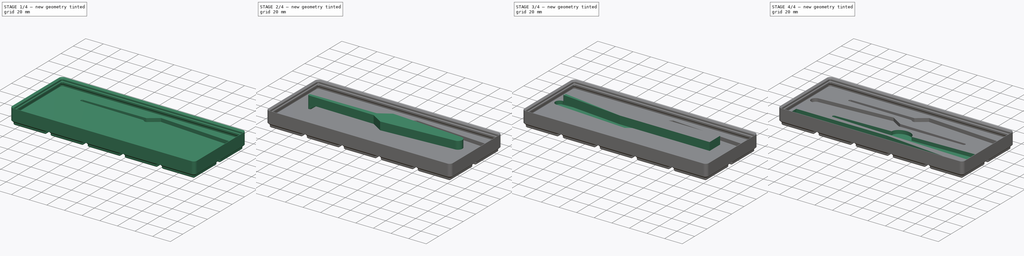
[diagram: build sequence overview — one tinted view per stage of 4, left to right]
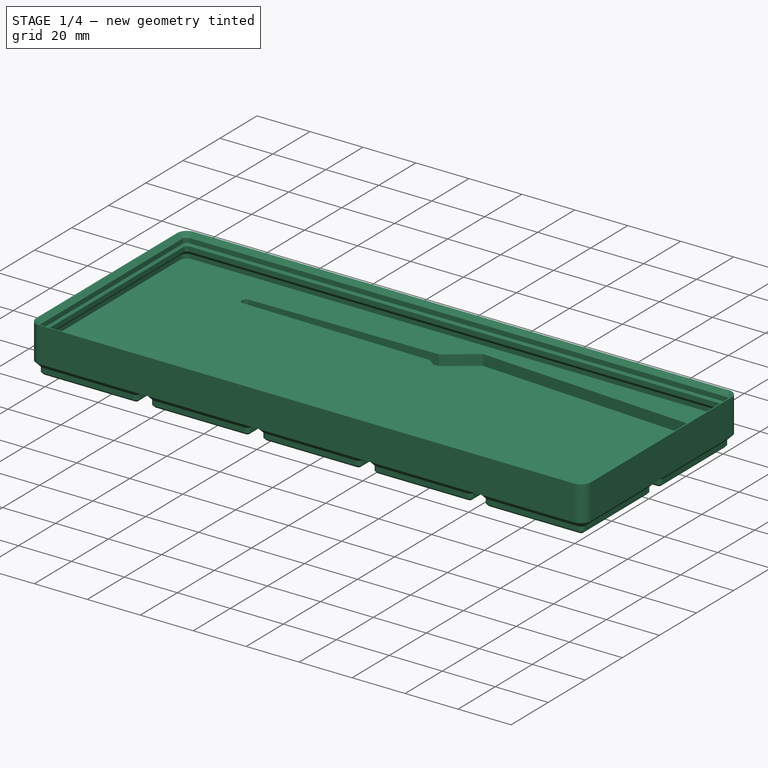
[diagram: stage 1 of 4 — iso view after this stage's code; geometry added in this stage tinted green]
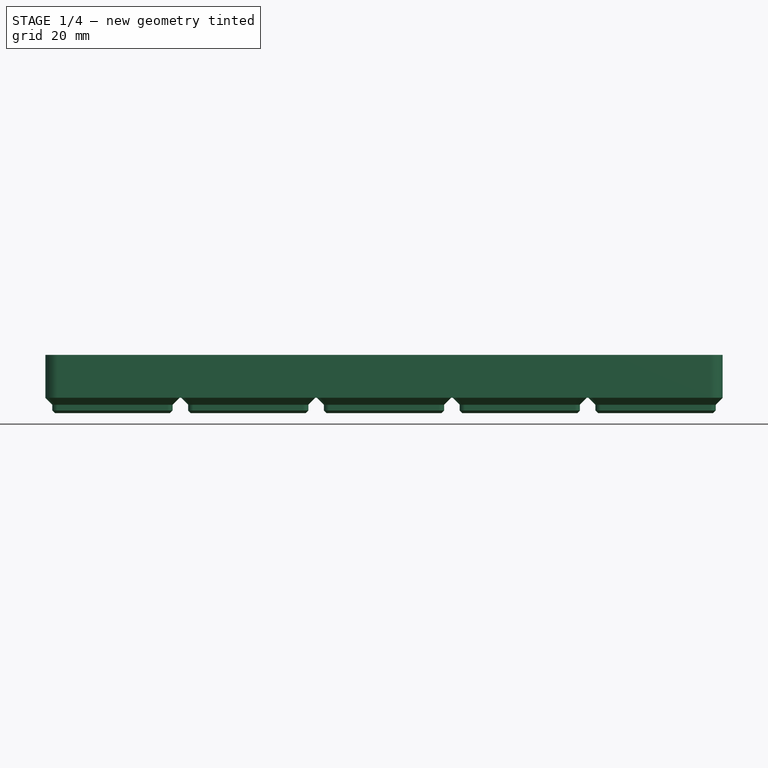
[diagram: stage 1 of 4 — front view after this stage's code; geometry added in this stage tinted green]
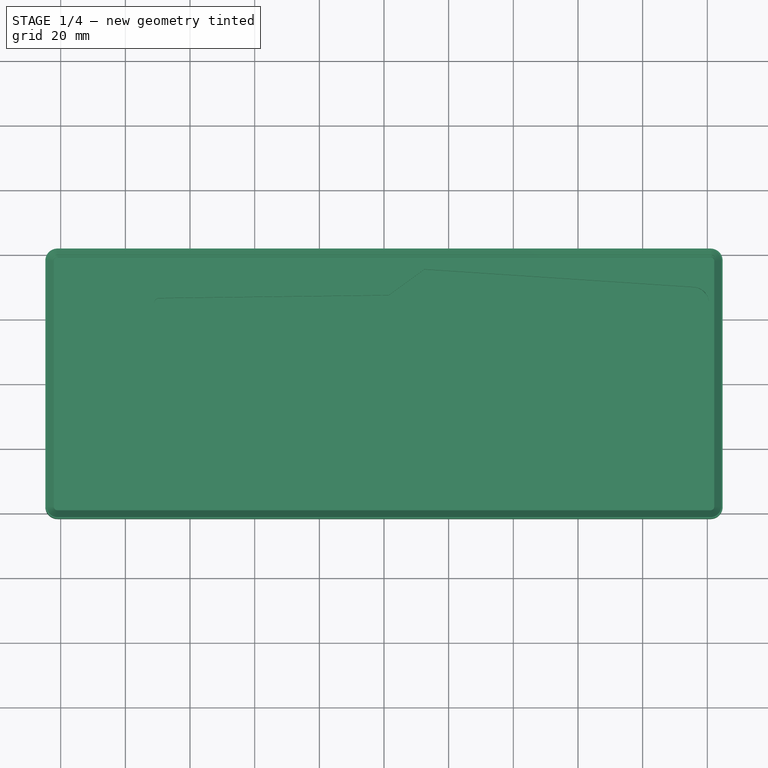
[diagram: stage 1 of 4 — top view after this stage's code; geometry added in this stage tinted green]
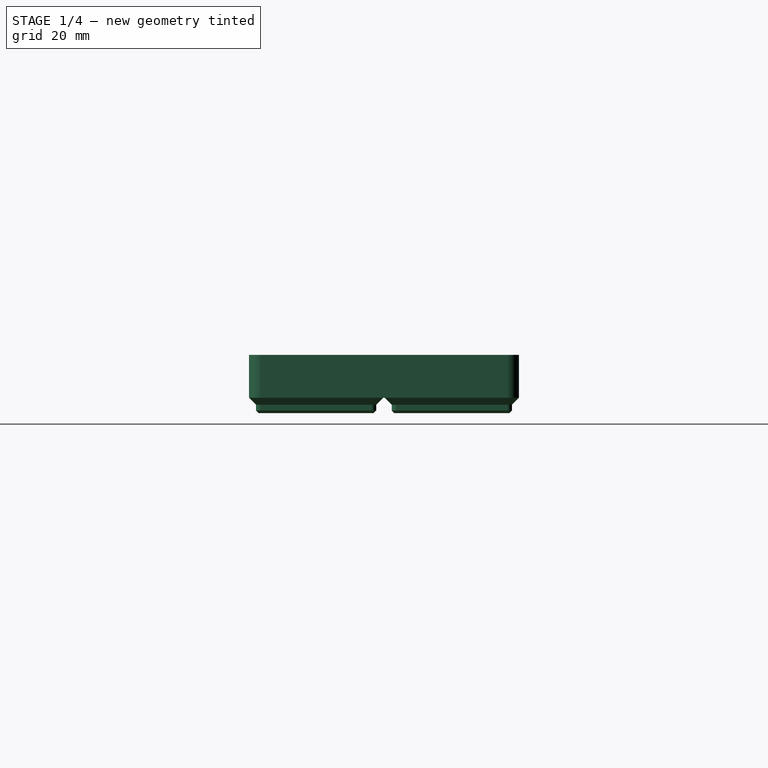
[diagram: stage 1 of 4 — right view after this stage's code; geometry added in this stage tinted green]
FCSTD DOCUMENT  (FreeCAD 1.0R39285 (Git))
Label: tweezer bin
License: All rights reserved
LicenseURL: https://en.wikipedia.org/wiki/All_rights_reserved
objects: Sketcher::SketchObject×6, PartDesign::Pad×5, PartDesign::Body×4, Part::Cut×4, Part::FeaturePython×1, PartDesign::AdditiveLoft×1
note: 39 computed .brp shape members not serialized (recipe doc carries the construction recipe); baked Part::Feature solids carry a one-line shape summary decoded from their .brp

FEATURE [Part::FeaturePython] BinBlank  # WARN: FeaturePython — macro-defined, semantics opaque (R4)
  BaseProfileBottomChamfer = 0.8
  BaseProfileHeight = 4.75
  BaseProfileTopChamfer = 2.15
  BaseProfileVerticalSection = 1.8
  Baseplate = false
  BinBottomRadius = 0.8
  BinOuterRadius = 3.75
  BinVerticalRadius = 1.6
  Clearance = 0.25
  CustomHeight = 42
  GenerationLocation = 1
  HeightUnitValue = 7
  HeightUnits = 2
  MagnetHoleDepth = 2.4
  MagnetHoleDiameter = 6.2
  MagnetHoleDistanceFromEdge = 8
  MagnetHoles = false
  MagnetHolesShape = 0
  NonStandardHeight = false
  RecessedTopDepth = 5
  ScrewHoleDepth = 6
  ScrewHoleDiameter = 3
  ScrewHoles = false
  SequentialBridgingLayerHeight = 0.2
  StackingLip = true
  StackingLipBottomChamfer = 0.7
  StackingLipTopChamfer = 1.5
  StackingLipTopLedge = 0.4
  StackingLipVerticalSection = 1.8
  TotalHeight = 14
  WallThickness = 1
  version = 0.11.9
  xGridSize = 42
  xGridUnits = 5
  xLocationOffset = 105
  xTotalWidth = 209.5
  yGridSize = 42
  yGridUnits = 2
  yLocationOffset = 42
  yTotalWidth = 83.5
  expr: BaseProfileHeight = BaseProfileBottomChamfer + BaseProfileVerticalSection + BaseProfileTopChamfer
  expr: TotalHeight = NonStandardHeight == 1 ? CustomHeight : HeightUnits * HeightUnitValue
  expr: xTotalWidth = xGridUnits * xGridSize - (Baseplate == 1 ? 0 mm : 2 * Clearance)
  expr: yTotalWidth = yGridUnits * yGridSize - (Baseplate == 1 ? 0 mm : 2 * Clearance)
FEATURE [Sketcher::SketchObject] Sketch
  ArcFitTolerance = 1e-06
  AttachmentSupport = -> [XY_Plane]
  FullyConstrained = true
  MakeInternals = false
  MapMode = 5
  sketch-geometry (8):
    g0: LineSegment StartX=-82.5203 StartY=-1.6 StartZ=0 EndX=-11.5203 EndY=-2.5 EndZ=0
    g1: LineSegment StartX=-11.5203 StartY=-2.5 StartZ=0 EndX=-0.5 EndY=-10.5061 EndZ=0
    g2: LineSegment StartX=-0.5 StartY=-10.5061 StartZ=0 EndX=82.8304 EndY=-5 EndZ=0
    g3: ArcOfCircle CenterX=82.5 CenterY=3e-16 CenterZ=0 NormalX=0 NormalY=0 NormalZ=1 AngleXU=0 Radius=5.0109 StartAngle=4.77837 EndAngle=7.788
    g4: LineSegment StartX=82.8304 StartY=5 StartZ=0 EndX=-0.5 EndY=10.5061 EndZ=0
    g5: LineSegment StartX=-0.5 StartY=10.5061 StartZ=0 EndX=-11.5203 EndY=2.5 EndZ=0
    g6: LineSegment StartX=-11.5203 StartY=2.5 StartZ=0 EndX=-82.5203 EndY=1.6 EndZ=0
    g7: ArcOfCircle CenterX=-82.5 CenterY=-1e-16 CenterZ=0 NormalX=0 NormalY=0 NormalZ=1 AngleXU=0 Radius=1.60013 StartAngle=1.58347 EndAngle=4.69971
  constraints (19):
    c: Coincident(g0,g1)
    c: Coincident(g1,g2)
    c: Tangent(g2,g3) = -1.5708
    c: Tangent(g3,g4) = -1.5708
    c: Coincident(g4,g5)
    c: Coincident(g5,g6)
    c: Tangent(g6,g7) = -1.5708
    c: Coincident(g7,g0)
    c: DistanceY(g0,g6) = 3.2
    c: DistanceY(g2,g3) = 10
    c: DistanceX(g7,g3) = 165
    c: DistanceX(g4,g3) = 83
    c: DistanceX(g0,g0) = 71
    c: DistanceY(g0,g5) = 5
    c: DistanceX(g-1,g3) = 82.5
    c: Symmetric(g2,g3,g-1)
    c: Symmetric(g4,g1,g-1)
    c: Symmetric(g5,g0,g-1)
    c: Symmetric(g0,g6,g-1)
FEATURE [PartDesign::Pad] Pad
  Direction = (0,0,1)
  Length = 9
  Length2 = 10
  Profile = -> Sketch
  ReferenceAxis = -> Sketch [N_Axis]
  Refine = true
  Suppressed = false
  Type = 0
FEATURE [PartDesign::Body] Body003  label="Clip Tweezer"
  AllowCompound = false
  Group = -> [Sketch005,Pad004]
  Origin = -> Origin003
  Placement = pos=(19,-12,-9) rot=(0,0,1;0rad)
  Tip = -> Pad004
FEATURE [Part::Cut] Cut
  Base = -> BinBlank
  Refine = true
  Tool = -> Body
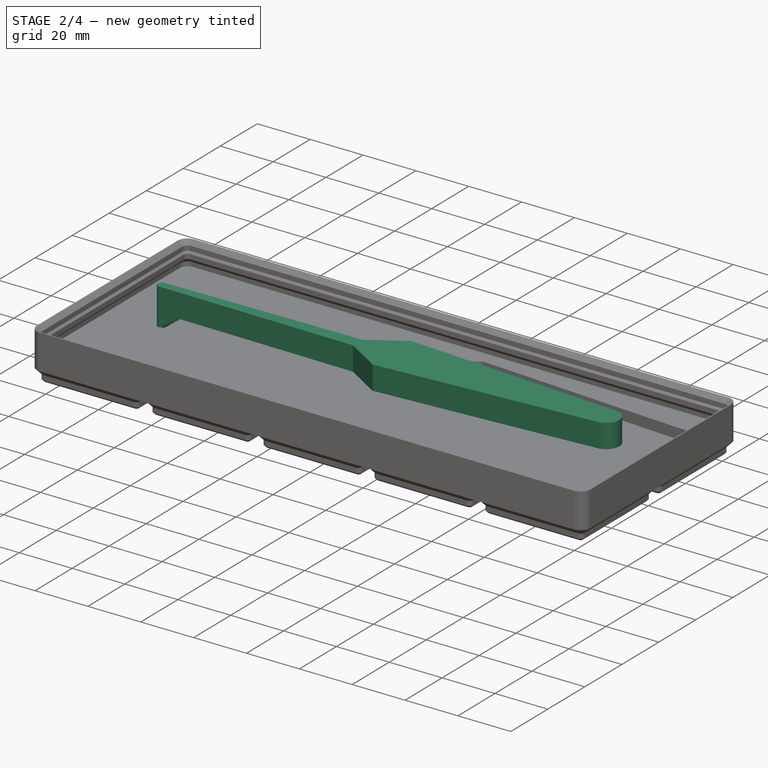
[diagram: stage 2 of 4 — iso view after this stage's code; geometry added in this stage tinted green]
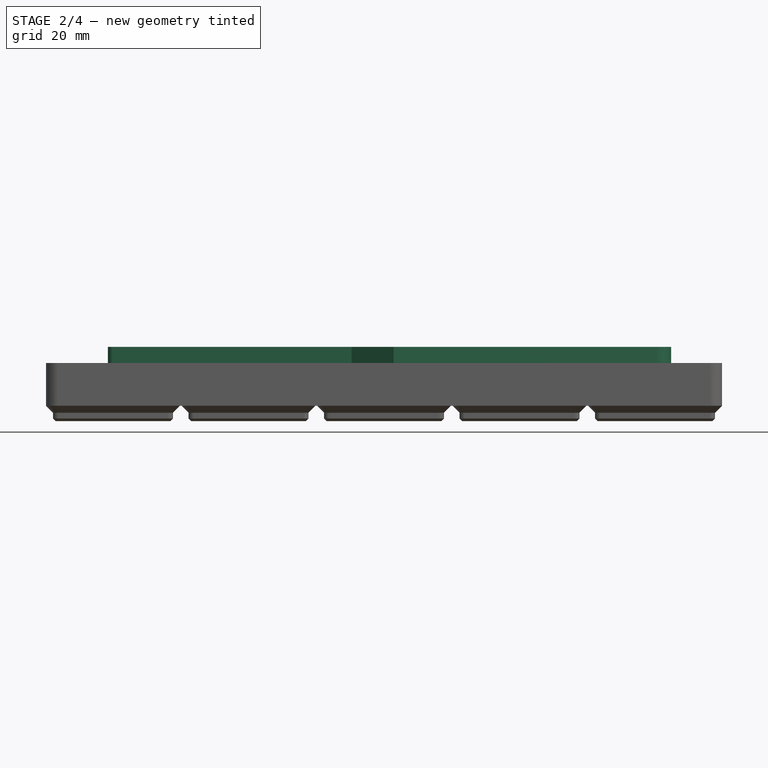
[diagram: stage 2 of 4 — front view after this stage's code; geometry added in this stage tinted green]
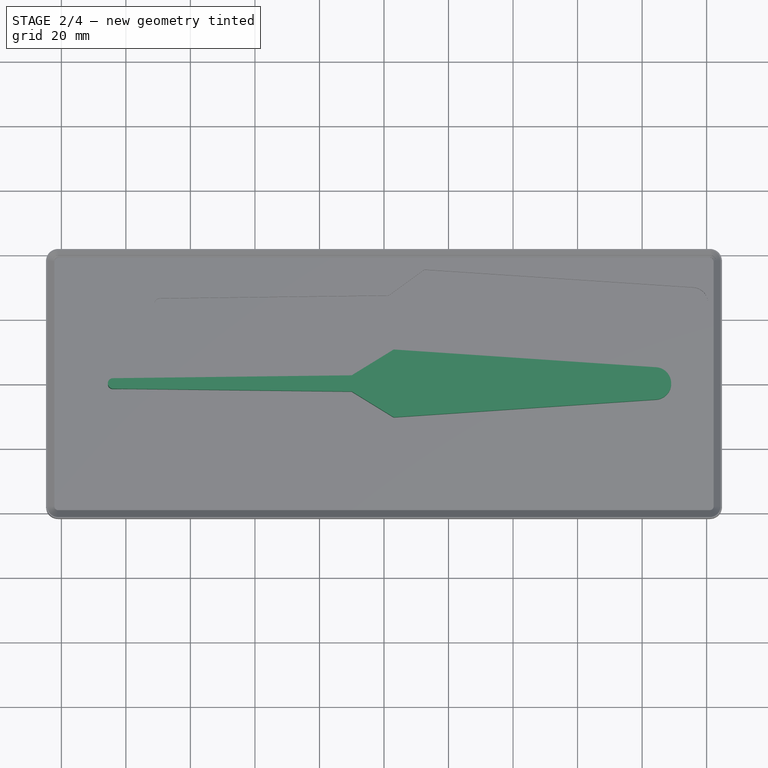
[diagram: stage 2 of 4 — top view after this stage's code; geometry added in this stage tinted green]
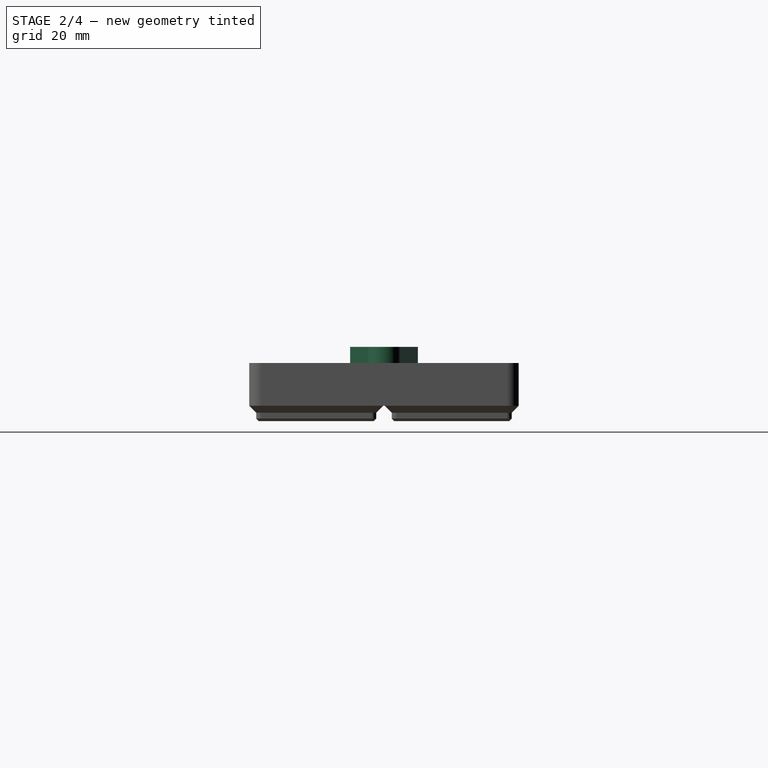
[diagram: stage 2 of 4 — right view after this stage's code; geometry added in this stage tinted green]
FEATURE [PartDesign::Body] Body  label="NC Tweezer Straight"
  AllowCompound = false
  Group = -> [Sketch,Pad]
  Origin = -> Origin
  Placement = pos=(13,25,-9) rot=(0,0,1;0rad)
  Tip = -> Pad
FEATURE [Sketcher::SketchObject] Sketch001
  ArcFitTolerance = 1e-06
  AttachmentSupport = -> [XY_Plane001]
  FullyConstrained = true
  MakeInternals = false
  MapMode = 5
  sketch-geometry (8):
    g0: LineSegment StartX=-84.0195 StartY=-1.6 StartZ=0 EndX=-10.0195 EndY=-2.5 EndZ=0
    g1: LineSegment StartX=-10.0195 StartY=-2.5 StartZ=0 EndX=3 EndY=-10.5 EndZ=0
    g2: LineSegment StartX=3 StartY=-10.5 StartZ=0 EndX=84.3381 EndY=-5 EndZ=0
    g3: ArcOfCircle CenterX=84 CenterY=0 CenterZ=0 NormalX=0 NormalY=0 NormalZ=1 AngleXU=0 Radius=5.01142 StartAngle=4.77991 EndAngle=7.78647
    g4: LineSegment StartX=84.3381 StartY=5 StartZ=0 EndX=3 EndY=10.5 EndZ=0
    g5: LineSegment StartX=3 StartY=10.5 StartZ=0 EndX=-10.0195 EndY=2.5 EndZ=0
    g6: LineSegment StartX=-10.0195 StartY=2.5 StartZ=0 EndX=-84.0195 EndY=1.6 EndZ=0
    g7: ArcOfCircle CenterX=-84 CenterY=1e-16 CenterZ=0 NormalX=0 NormalY=0 NormalZ=1 AngleXU=0 Radius=1.60012 StartAngle=1.58296 EndAngle=4.70023
  constraints (21):
    c: Coincident(g0,g1)
    c: Coincident(g1,g2)
    c: Tangent(g2,g3) = -1.5708
    c: Coincident(g4,g5)
    c: Coincident(g5,g6)
    c: Tangent(g6,g7) = -1.5708
    c: Coincident(g7,g0)
    c: DistanceY(g0,g6) = 3.2
    c: DistanceY(g2,g3) = 10
    c: DistanceX(g7,g3) = 168
    c: DistanceX(g4,g3) = 81
    c: DistanceX(g0,g0) = 74
    c: DistanceY(g0,g5) = 5
    c: Symmetric(g3,g2,g-1)
    c: DistanceY(g1,g4) = 21
    c: Symmetric(g5,g0,g-1)
    c: Symmetric(g6,g0,g-1)
    c: DistanceX(g-1,g3) = 84
    c: Symmetric(g4,g1,g-1)
    c: PointOnObject(g4,g3)
    c: Tangent(g3,g4,g4) = -1.5708
FEATURE [PartDesign::Pad] Pad001
  Direction = (0,0,1)
  Length = 9
  Length2 = 10
  Profile = -> Sketch001
  ReferenceAxis = -> Sketch001 [N_Axis]
  Refine = true
  Suppressed = false
  Type = 0
FEATURE [Sketcher::SketchObject] Sketch002
  ArcFitTolerance = 1e-06
  AttachmentSupport = -> [Pad001]
  ExternalGeometry = -> [Pad001]
  FullyConstrained = true
  MakeInternals = false
  MapMode = 5
  Placement = pos=(0,0,0) rot=(1,0,0;3.14159rad)
  sketch-geometry (1):
    g0: Circle CenterX=-84 CenterY=-1e-16 CenterZ=0 NormalX=0 NormalY=0 NormalZ=1 AngleXU=0 Radius=1.60012
  constraints (2):
    c: Coincident(g0,g-3)
    c: PointOnObject(g-3,g0)
FEATURE [PartDesign::Pad] Pad002
  BaseFeature = -> Pad001
  Direction = (0,0,-1)
  Length = 5
  Length2 = 10
  Profile = -> Sketch002
  ReferenceAxis = -> Sketch002 [N_Axis]
  Refine = true
  Suppressed = false
  Type = 0
FEATURE [Sketcher::SketchObject] Sketch003
  ArcFitTolerance = 1e-06
  AttachmentSupport = -> [Pad002]
  ExternalGeometry = -> [Pad002]
  FullyConstrained = true
  MakeInternals = false
  MapMode = 5
  Placement = pos=(0,0,0) rot=(1,0,0;3.14159rad)
  sketch-geometry (4):
    g0: LineSegment StartX=-84.0195 StartY=-1.6 StartZ=0 EndX=-76 EndY=-1.69753 EndZ=0
    g1: LineSegment StartX=-76 StartY=-1.69753 StartZ=0 EndX=-76 EndY=1.69753 EndZ=0
    g2: LineSegment StartX=-76 StartY=1.69753 StartZ=0 EndX=-84.0195 EndY=1.6 EndZ=0
    g3: ArcOfCircle CenterX=-84 CenterY=0 CenterZ=0 NormalX=0 NormalY=0 NormalZ=1 AngleXU=0 Radius=1.60012 StartAngle=1.58296 EndAngle=4.70023
  constraints (10):
    c: Coincident(g0,g1)
    c: Vertical(g1)
    c: Coincident(g1,g2)
    c: Tangent(g2,g3) = -1.5708
    c: Coincident(g3,g0)
    c: DistanceX(g3,g1) = 8
    c: Coincident(g2,g-4)
    c: Coincident(g0,g-5)
    c: PointOnObject(g1,g-4)
    c: PointOnObject(g0,g-5)
FEATURE [PartDesign::AdditiveLoft] AdditiveLoft
  BaseFeature = -> Pad002
  Closed = false
  Profile = -> Sketch003
  Refine = true
  Ruled = false
  Sections = -> [Pad002]
  Suppressed = false
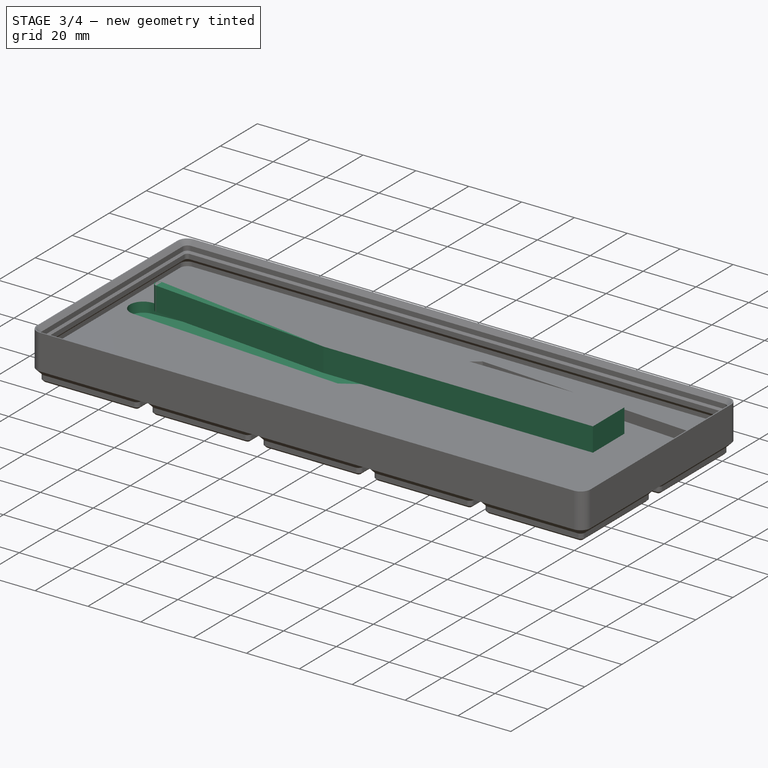
[diagram: stage 3 of 4 — iso view after this stage's code; geometry added in this stage tinted green]
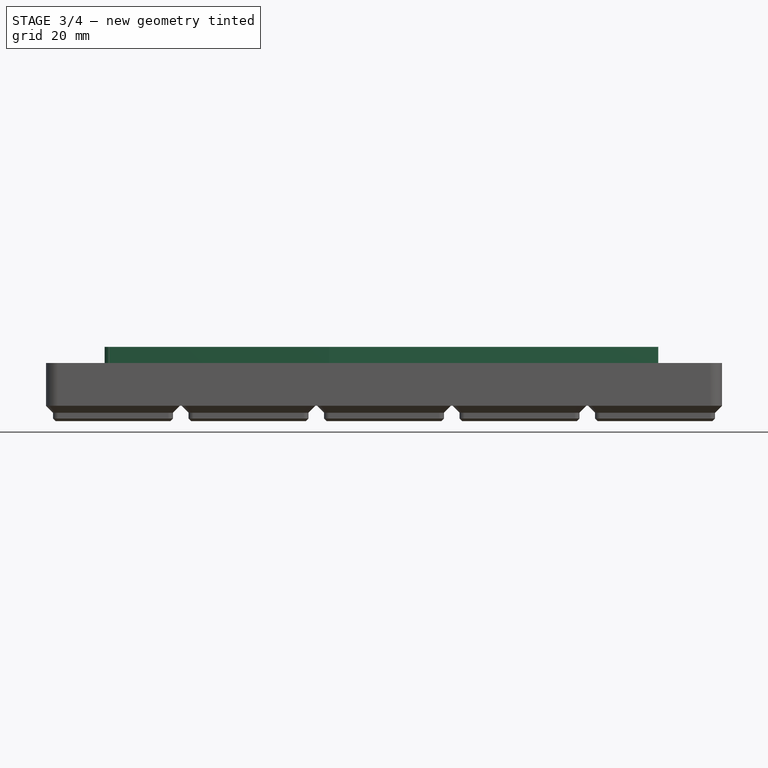
[diagram: stage 3 of 4 — front view after this stage's code; geometry added in this stage tinted green]
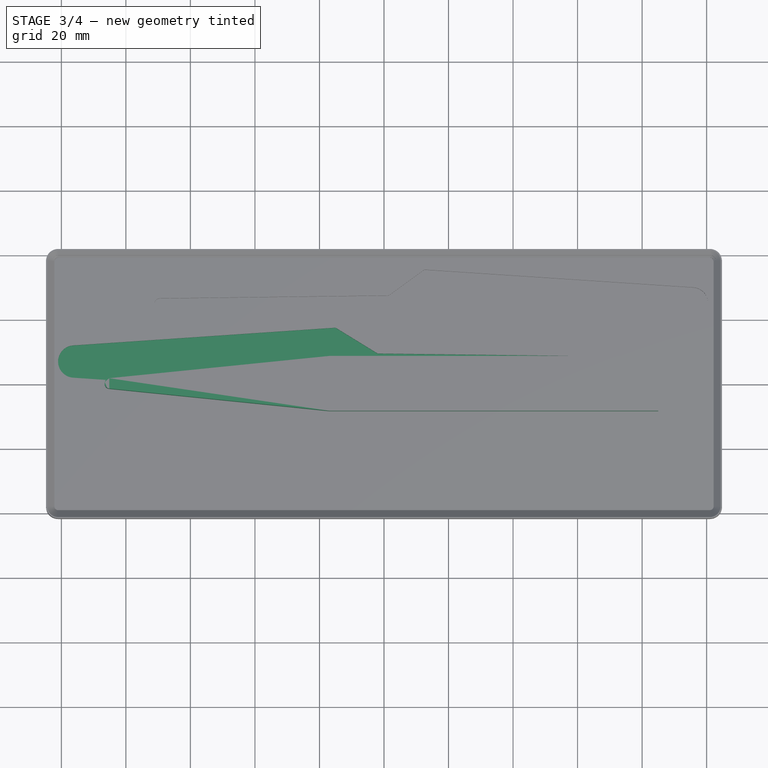
[diagram: stage 3 of 4 — top view after this stage's code; geometry added in this stage tinted green]
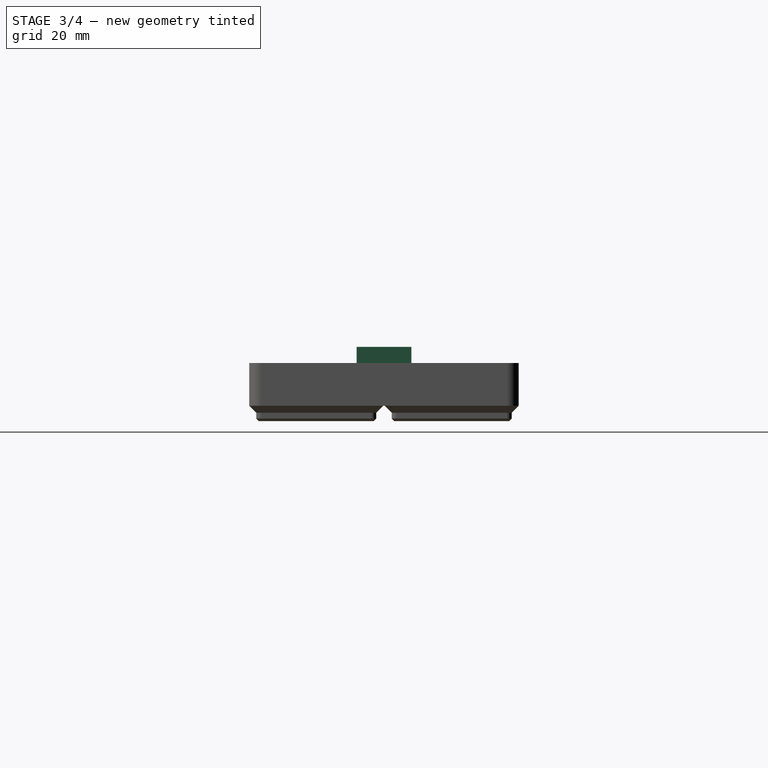
[diagram: stage 3 of 4 — right view after this stage's code; geometry added in this stage tinted green]
FEATURE [PartDesign::Body] Body001  label="NC Tweezer Angled"
  AllowCompound = false
  Group = -> [Pad001,Sketch001,Sketch002,Pad002,Sketch003,AdditiveLoft]
  Origin = -> Origin001
  Placement = pos=(-12,7,-8.8) rot=(0,0,1;3.14159rad)
  Tip = -> AdditiveLoft
FEATURE [Sketcher::SketchObject] Sketch004
  ArcFitTolerance = 1e-06
  AttachmentSupport = -> [XY_Plane002]
  FullyConstrained = true
  MakeInternals = false
  MapMode = 5
  sketch-geometry (6):
    g0: LineSegment StartX=-85.162 StartY=-1.6 StartZ=0 EndX=-17 EndY=-8.5 EndZ=0
    g1: LineSegment StartX=-17 StartY=-8.5 StartZ=0 EndX=85 EndY=-8.5 EndZ=0
    g2: LineSegment StartX=85 StartY=-8.5 StartZ=0 EndX=85 EndY=8.5 EndZ=0
    g3: LineSegment StartX=85 StartY=8.5 StartZ=0 EndX=-17 EndY=8.5 EndZ=0
    g4: LineSegment StartX=-17 StartY=8.5 StartZ=0 EndX=-85.162 EndY=1.6 EndZ=0
    g5: ArcOfCircle CenterX=-85 CenterY=0 CenterZ=0 NormalX=0 NormalY=0 NormalZ=1 AngleXU=0 Radius=1.60818 StartAngle=1.67168 EndAngle=4.6115
  constraints (15):
    c: Coincident(g0,g1)
    c: Horizontal(g1)
    c: Coincident(g1,g2)
    c: Coincident(g2,g3)
    c: Coincident(g3,g4)
    c: Tangent(g4,g5) = -1.5708
    c: Coincident(g5,g0)
    c: DistanceY(g0,g3) = 17
    c: Symmetric(g3,g0,g-1)
    c: Symmetric(g2,g1,g-1)
    c: Symmetric(g4,g0,g-1)
    c: DistanceY(g0,g4) = 3.2
    c: DistanceX(g5,g2) = 170
    c: DistanceX(g3,g2) = 102
    c: DistanceX(g-1,g1) = 85
FEATURE [PartDesign::Pad] Pad003
  Direction = (0,0,1)
  Length = 9
  Length2 = 10
  Profile = -> Sketch004
  ReferenceAxis = -> Sketch004 [N_Axis]
  Refine = true
  Suppressed = false
  Type = 0
FEATURE [Part::Cut] Cut001
  Base = -> Cut
  Refine = true
  Tool = -> Body001
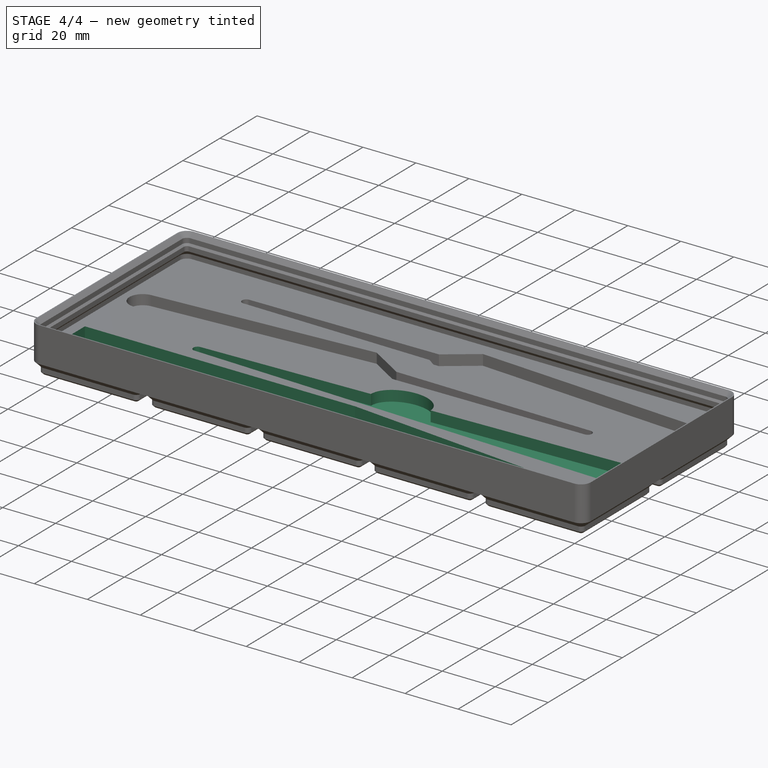
[diagram: stage 4 of 4 — iso view after this stage's code; geometry added in this stage tinted green]
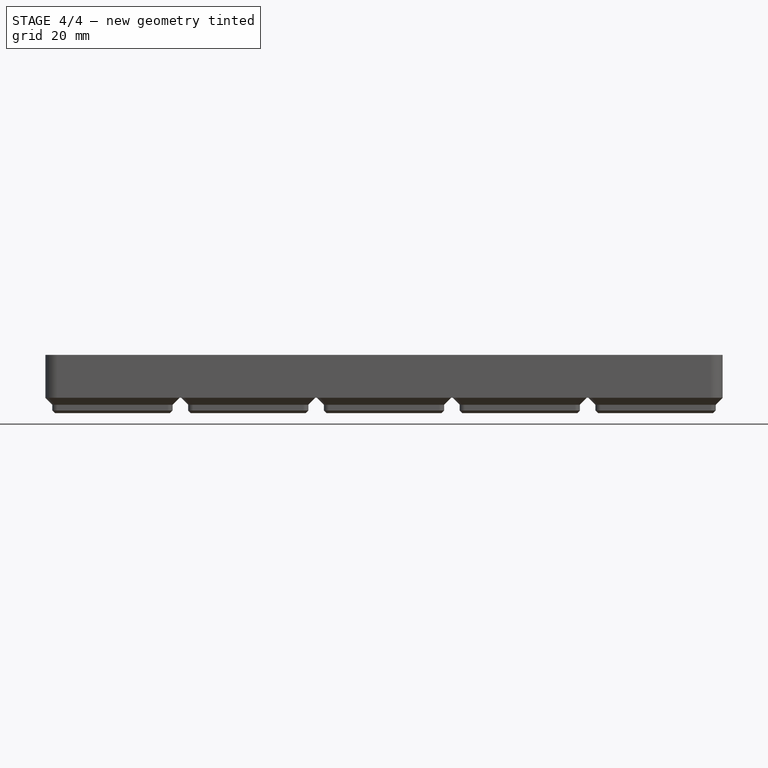
[diagram: stage 4 of 4 — front view after this stage's code; geometry added in this stage tinted green]
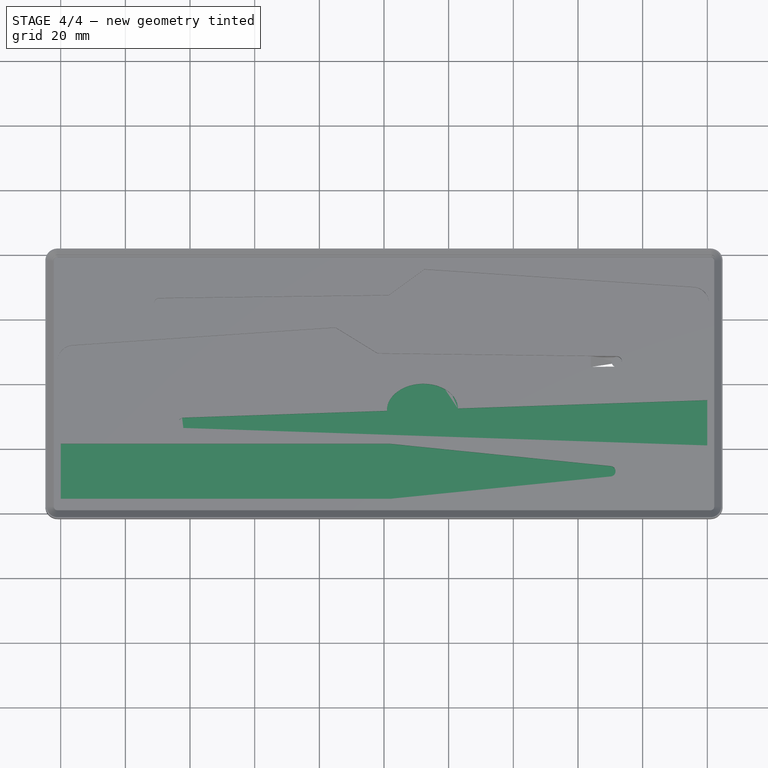
[diagram: stage 4 of 4 — top view after this stage's code; geometry added in this stage tinted green]
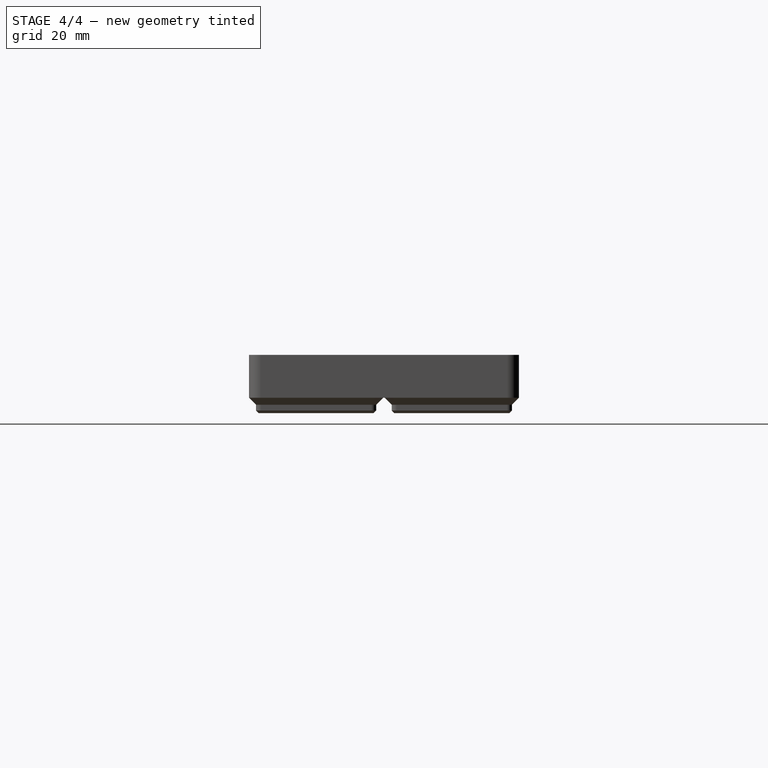
[diagram: stage 4 of 4 — right view after this stage's code; geometry added in this stage tinted green]
FEATURE [PartDesign::Body] Body002  label="NO Tweezer"
  AllowCompound = false
  Group = -> [Sketch004,Pad003]
  Origin = -> Origin002
  Placement = pos=(-15,-27,-9) rot=(0,0,1;3.14159rad)
  Tip = -> Pad003
FEATURE [Sketcher::SketchObject] Sketch005
  ArcFitTolerance = 1e-06
  AttachmentSupport = -> [XY_Plane003]
  FullyConstrained = true
  MakeInternals = false
  MapMode = 5
  sketch-geometry (9):
    g0: LineSegment StartX=-81.0533 StartY=-1.6 StartZ=0 EndX=81 EndY=-7 EndZ=0
    g1: LineSegment StartX=81 StartY=-7 StartZ=0 EndX=81 EndY=7 EndZ=0
    g2: LineSegment StartX=81 StartY=7 StartZ=0 EndX=-81.0533 EndY=1.6 EndZ=0
    g3: ArcOfCircle CenterX=-81 CenterY=-1e-16 CenterZ=0 NormalX=0 NormalY=0 NormalZ=1 AngleXU=0 Radius=1.60089 StartAngle=1.60411 EndAngle=4.67908
    g4: Ellipse CenterX=-7.09437 CenterY=4.06449 CenterZ=0 NormalX=0 NormalY=0 NormalZ=1 MajorRadius=11 MinorRadius=8 AngleXU=-3.10828
    g5: LineSegment [constr] StartX=-18.0883 StartY=3.69814 StartZ=0 EndX=3.89953 EndY=4.43083 EndZ=0
    g6: LineSegment [constr] StartX=-6.82793 StartY=-3.93107 StartZ=0 EndX=-7.3608 EndY=12.06 EndZ=0
    g7: GeomPoint [constr] X=-14.64 Y=3.81305 Z=0
    g8: GeomPoint [constr] X=0.451281 Y=4.31593 Z=0
  constraints (16):
    c: Coincident(g0,g1)
    c: Coincident(g1,g2)
    c: Tangent(g2,g3) = -1.5708
    c: Coincident(g3,g0)
    c: Symmetric(g2,g0,g-1)
    c: Symmetric(g1,g0,g-1)
    c: DistanceX(g3,g1) = 162
    c: DistanceY(g0,g2) = 3.2
    c: DistanceY(g0,g1) = 14
    c: DistanceX(g-1,g1) = 81
    c: InternalAlignment(g5-g8 -> g4) x4
    c: Distance(g5,g5) = 22
    c: Distance(g5,g2) = 63
    c: PointOnObject(g5,g2)
    c: PointOnObject(g5,g2)
    c: Distance(g6,g4) = 8
FEATURE [PartDesign::Pad] Pad004
  Direction = (0,0,1)
  Length = 12
  Length2 = 10
  Profile = -> Sketch005
  ReferenceAxis = -> Sketch005 [N_Axis]
  Refine = true
  Suppressed = false
  Type = 0
FEATURE [Part::Cut] Cut002
  Base = -> Cut001
  Refine = true
  Tool = -> Body002
FEATURE [Part::Cut] Cut003
  Base = -> Cut002
  Refine = true
  Tool = -> Body003
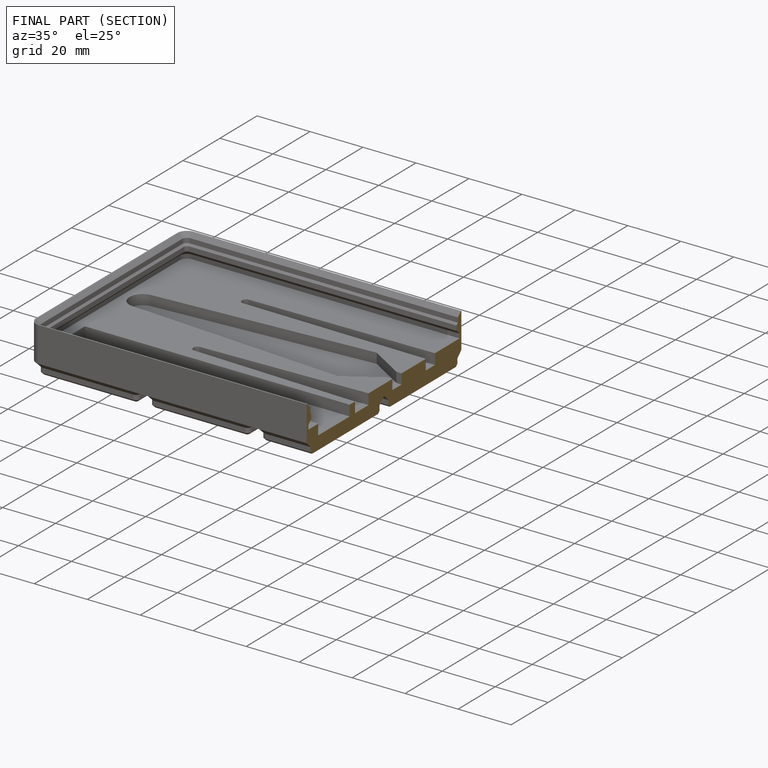
[diagram: finished part — half-section view (interior)]
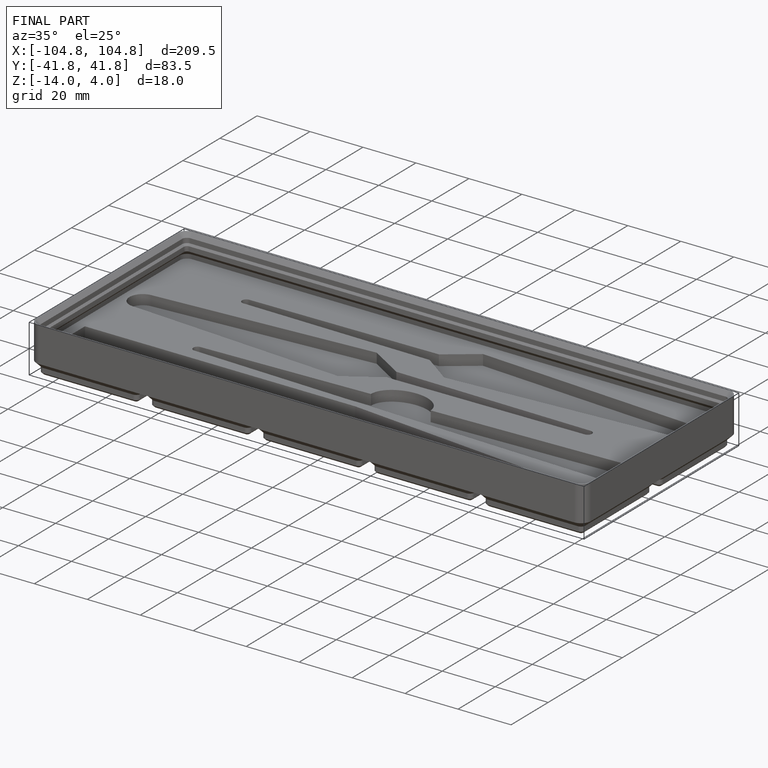
[diagram: finished part — iso view with bounding-box wireframe]
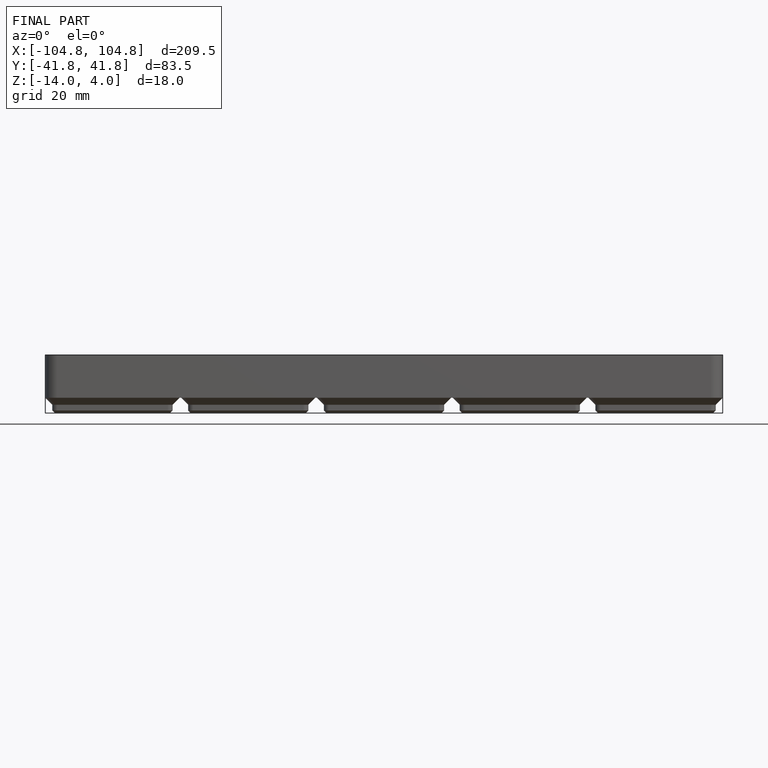
[diagram: finished part — front view with bounding-box wireframe]
